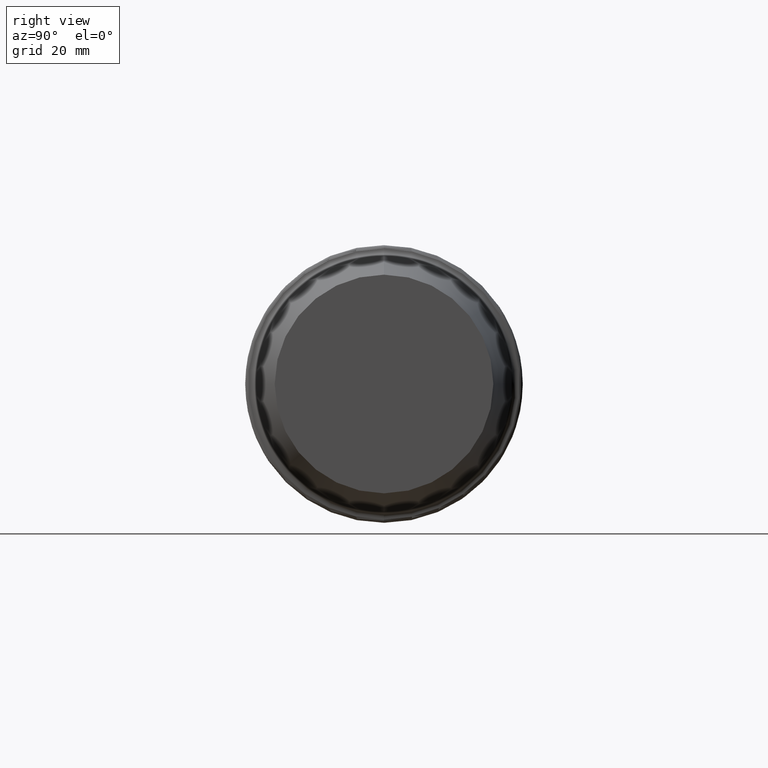
[diagram: clean part render]
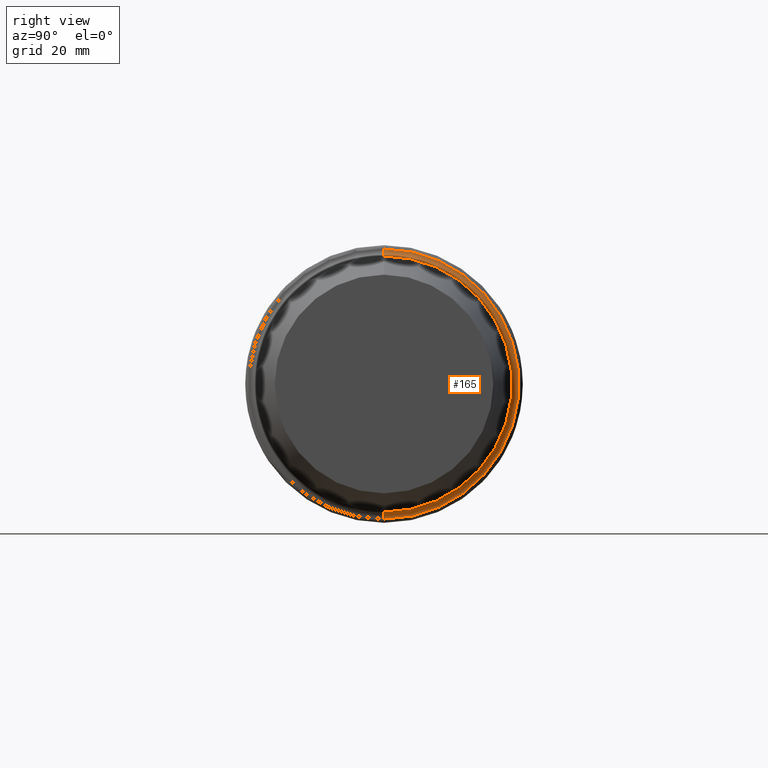
[diagram: same view with one face highlighted and labeled with its STEP entity id]
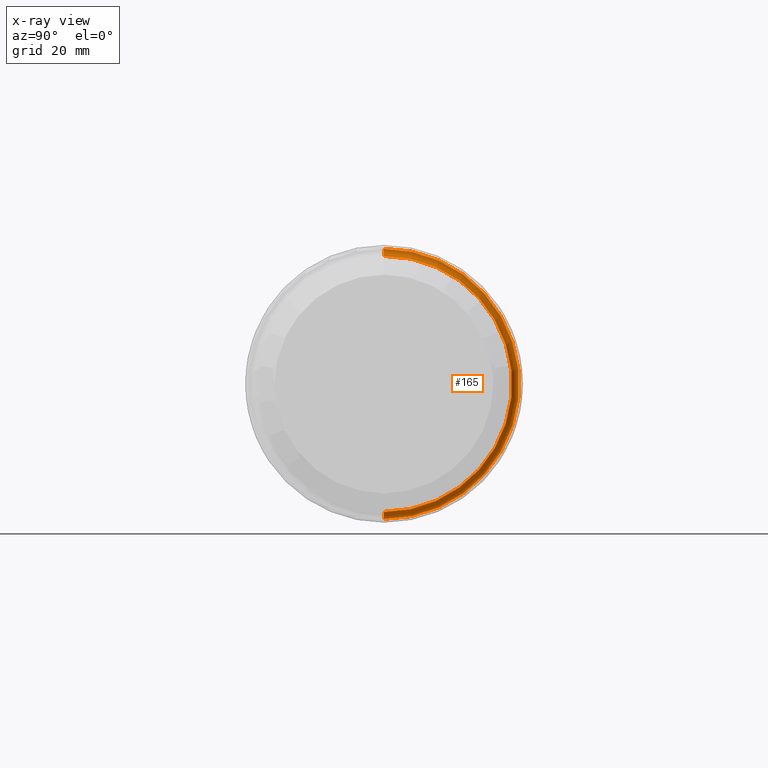
[diagram: x-ray of the same camera — body ghosted, the highlighted face saturated]
A machine part, right view. The second image highlights one B-rep face of the part: STEP entity #165.
The next image is the same camera in x-ray: the body ghosted, the highlighted face saturated — about 0% of this face is hidden behind the body in this view.
In plain terms, the highlighted toroidal blend (fillet) surface has major radius 38.8928 mm and minor (blend) radius 2 mm.
Its self-contained STEP definition (entity closure, byte-faithful):
#2 = CARTESIAN_POINT ( 'NONE',  ( 31.88996590016365218, 0.000000000000000000, 0.000000000000000000 ) ) ;
#18 = AXIS2_PLACEMENT_3D ( 'NONE', #446, #26, #482 ) ;
#22 = DIRECTION ( 'NONE',  ( 0.000000000000000000, 0.000000000000000000, -1.000000000000000000 ) ) ;
#26 = DIRECTION ( 'NONE',  ( -1.000000000000000000, 0.000000000000000000, 0.000000000000000000 ) ) ;
#48 = CIRCLE ( 'NONE', #18, 38.89283274499099718 ) ;
#56 = AXIS2_PLACEMENT_3D ( 'NONE', #207, #330, #525 ) ;
#60 = ORIENTED_EDGE ( 'NONE', *, *, #476, .T. ) ;
#78 = DIRECTION ( 'NONE',  ( -1.000000000000000000, 0.000000000000000000, 0.000000000000000000 ) ) ;
#91 = EDGE_CURVE ( 'NONE', #281, #169, #151, .T. ) ;
#128 = CARTESIAN_POINT ( 'NONE',  ( 31.88996590016365218, 0.000000000000000000, 36.89586191702791496 ) ) ;
#134 = CIRCLE ( 'NONE', #246, 36.89586191702791496 ) ;
#136 = EDGE_CURVE ( 'NONE', #302, #281, #48, .T. ) ;
#145 = EDGE_LOOP ( 'NONE', ( #229, #205, #60, #306 ) ) ;
#151 = CIRCLE ( 'NONE', #56, 1.999999997960001608 ) ;
#157 = CARTESIAN_POINT ( 'NONE',  ( 31.99999997005141594, 0.000000000000000000, 0.000000000000000000 ) ) ;
#165 = ADVANCED_FACE ( 'NONE', ( #354 ), #471, .F. ) ;
#169 = VERTEX_POINT ( 'NONE', #288 ) ;
#192 = CARTESIAN_POINT ( 'NONE',  ( 29.99999997209141611, 0.000000000000000000, 38.89283274593847750 ) ) ;
#205 = ORIENTED_EDGE ( 'NONE', *, *, #136, .F. ) ;
#207 = CARTESIAN_POINT ( 'NONE',  ( 31.99999997005141594, 4.762998313324717194E-15, -38.89283274688592229 ) ) ;
#227 = VERTEX_POINT ( 'NONE', #128 ) ;
#229 = ORIENTED_EDGE ( 'NONE', *, *, #91, .F. ) ;
#246 = AXIS2_PLACEMENT_3D ( 'NONE', #2, #270, #431 ) ;
#270 = DIRECTION ( 'NONE',  ( -1.000000000000000000, 0.000000000000000000, 0.000000000000000000 ) ) ;
#274 = AXIS2_PLACEMENT_3D ( 'NONE', #393, #403, #22 ) ;
#281 = VERTEX_POINT ( 'NONE', #385 ) ;
#288 = CARTESIAN_POINT ( 'NONE',  ( 31.88996590016365218, 4.518439919847096007E-15, -36.89586191702791496 ) ) ;
#302 = VERTEX_POINT ( 'NONE', #192 ) ;
#306 = ORIENTED_EDGE ( 'NONE', *, *, #310, .T. ) ;
#310 = EDGE_CURVE ( 'NONE', #227, #169, #134, .T. ) ;
#330 = DIRECTION ( 'NONE',  ( 0.000000000000000000, 1.000000000000000000, 1.224646799147355919E-16 ) ) ;
#354 = FACE_OUTER_BOUND ( 'NONE', #145, .T. ) ;
#385 = CARTESIAN_POINT ( 'NONE',  ( 29.99999997209141611, 4.762998313208685221E-15, -38.89283274593847750 ) ) ;
#393 = CARTESIAN_POINT ( 'NONE',  ( 31.99999997005141594, 0.000000000000000000, 38.89283274688592229 ) ) ;
#394 = DIRECTION ( 'NONE',  ( 0.000000000000000000, 0.000000000000000000, 1.000000000000000000 ) ) ;
#403 = DIRECTION ( 'NONE',  ( 0.000000000000000000, -1.000000000000000000, 0.000000000000000000 ) ) ;
#411 = CIRCLE ( 'NONE', #274, 1.999999997960001608 ) ;
#426 = AXIS2_PLACEMENT_3D ( 'NONE', #157, #78, #394 ) ;
#431 = DIRECTION ( 'NONE',  ( 0.000000000000000000, 0.000000000000000000, 1.000000000000000000 ) ) ;
#446 = CARTESIAN_POINT ( 'NONE',  ( 29.99999997209141611, 0.000000000000000000, 0.000000000000000000 ) ) ;
#471 = TOROIDAL_SURFACE ( 'NONE', #426, 38.89283274688592229, 1.999999997959999831 ) ;
#476 = EDGE_CURVE ( 'NONE', #302, #227, #411, .T. ) ;
#482 = DIRECTION ( 'NONE',  ( 0.000000000000000000, 0.000000000000000000, 1.000000000000000000 ) ) ;
#525 = DIRECTION ( 'NONE',  ( 0.000000000000000000, -1.224646799147354193E-16, 1.000000000000000000 ) ) ;